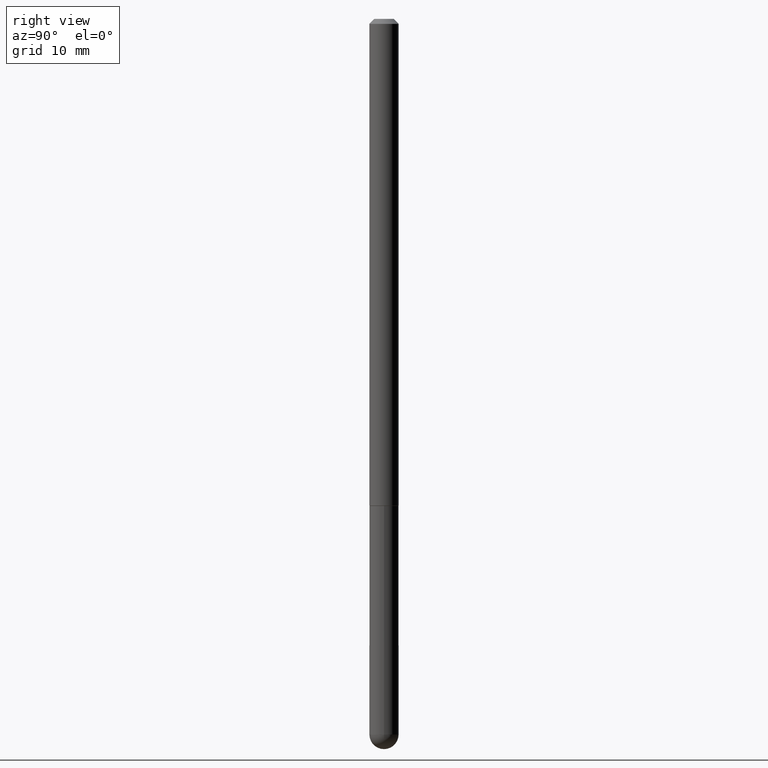
[diagram: clean part render]
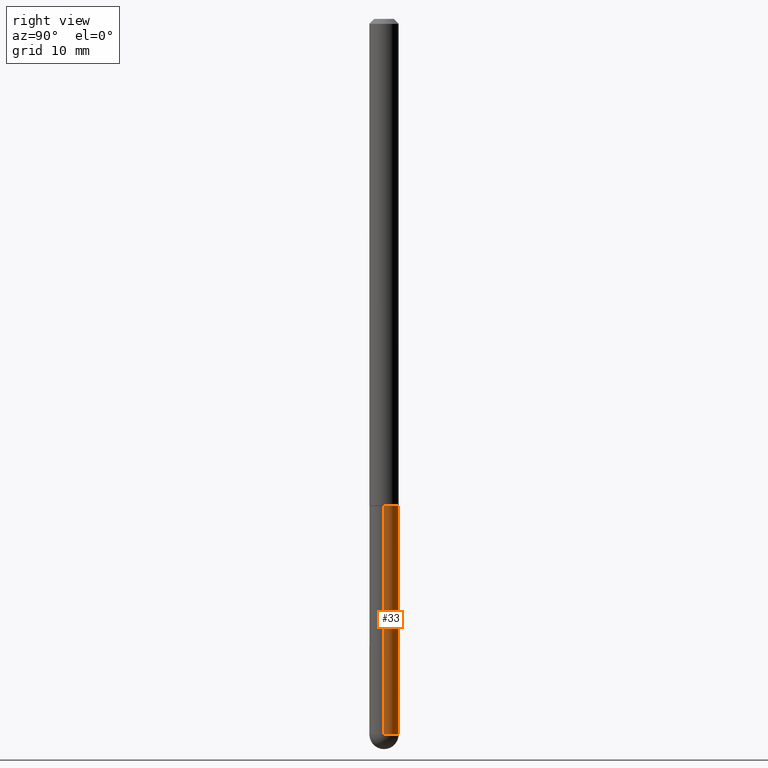
[diagram: same view with one face highlighted and labeled with its STEP entity id]
A machine part, right view. The second image highlights one B-rep face of the part: STEP entity #33.
In plain terms, the highlighted cylindrical surface (edge-blend (fillet) strip) has radius 1.4999 mm, axis along (-0, 0, 1).
Its self-contained STEP definition (entity closure, byte-faithful):
#3 = EDGE_LOOP ( 'NONE', ( #55, #138, #239, #338, #103 ) ) ;
#6 = LINE ( 'NONE', #59, #128 ) ;
#8 = VERTEX_POINT ( 'NONE', #226 ) ;
#27 = VERTEX_POINT ( 'NONE', #168 ) ;
#30 = DIRECTION ( 'NONE',  ( -2.445468806185136597E-29, 3.491481338843145583E-15, 1.000000000000000000 ) ) ;
#33 = ADVANCED_FACE ( 'NONE', ( #201 ), #275, .T. ) ;
#37 = DIRECTION ( 'NONE',  ( -2.445468806185136877E-29, 3.491481338843145188E-15, 1.000000000000000000 ) ) ;
#39 = EDGE_CURVE ( 'NONE', #52, #8, #6, .T. ) ;
#42 = CARTESIAN_POINT ( 'NONE',  ( 0.05905000000000001914, -8.900571516012416899E-15, -2.893749999999999822 ) ) ;
#52 = VERTEX_POINT ( 'NONE', #42 ) ;
#54 = CIRCLE ( 'NONE', #94, 0.05905000000000001914 ) ;
#55 = ORIENTED_EDGE ( 'NONE', *, *, #378, .T. ) ;
#59 = CARTESIAN_POINT ( 'NONE',  ( 0.05905000000000001914, -4.123439461173741806E-16, 2.879382386107500921E-30 ) ) ;
#92 = DIRECTION ( 'NONE',  ( 1.000000000000000000, -6.982962677686270655E-15, 0.000000000000000000 ) ) ;
#94 = AXIS2_PLACEMENT_3D ( 'NONE', #188, #30, #157 ) ;
#103 = ORIENTED_EDGE ( 'NONE', *, *, #194, .T. ) ;
#111 = CARTESIAN_POINT ( 'NONE',  ( 7.076575357898237682E-29, -1.010347412427735067E-14, -2.893749999999999822 ) ) ;
#128 = VECTOR ( 'NONE', #37, 39.37007874015748143 ) ;
#134 = AXIS2_PLACEMENT_3D ( 'NONE', #111, #331, #335 ) ;
#138 = ORIENTED_EDGE ( 'NONE', *, *, #282, .T. ) ;
#157 = DIRECTION ( 'NONE',  ( 1.000000000000000000, -6.982962677686270655E-15, 0.000000000000000000 ) ) ;
#159 = CARTESIAN_POINT ( 'NONE',  ( 4.123439461174440441E-16, 0.05904999999998979815, -2.893749999999999822 ) ) ;
#168 = CARTESIAN_POINT ( 'NONE',  ( -0.05905000000000001914, -8.068652084428701697E-15, -1.968499999999999694 ) ) ;
#171 = VECTOR ( 'NONE', #284, 39.37007874015748143 ) ;
#184 = CIRCLE ( 'NONE', #288, 0.05905000000000001914 ) ;
#188 = CARTESIAN_POINT ( 'NONE',  ( 4.813905344975440714E-29, -6.872981015512730918E-15, -1.968499999999999694 ) ) ;
#194 = EDGE_CURVE ( 'NONE', #52, #260, #311, .T. ) ;
#201 = FACE_OUTER_BOUND ( 'NONE', #3, .T. ) ;
#226 = CARTESIAN_POINT ( 'NONE',  ( 0.05905000000000001914, -7.285324961630105839E-15, -1.968499999999999694 ) ) ;
#239 = ORIENTED_EDGE ( 'NONE', *, *, #369, .F. ) ;
#245 = CARTESIAN_POINT ( 'NONE',  ( 0.000000000000000000, 0.000000000000000000, 0.000000000000000000 ) ) ;
#247 = CARTESIAN_POINT ( 'NONE',  ( 7.076575357898237682E-29, -1.010347412427735067E-14, -2.893749999999999822 ) ) ;
#251 = CARTESIAN_POINT ( 'NONE',  ( -0.05905000000000001914, -8.068652084428701697E-15, -2.893749999999999822 ) ) ;
#258 = VERTEX_POINT ( 'NONE', #251 ) ;
#260 = VERTEX_POINT ( 'NONE', #159 ) ;
#275 = CYLINDRICAL_SURFACE ( 'NONE', #363, 0.05905000000000001914 ) ;
#282 = EDGE_CURVE ( 'NONE', #258, #27, #321, .T. ) ;
#284 = DIRECTION ( 'NONE',  ( -2.445468806185136877E-29, 3.491481338843145188E-15, 1.000000000000000000 ) ) ;
#288 = AXIS2_PLACEMENT_3D ( 'NONE', #247, #375, #92 ) ;
#311 = CIRCLE ( 'NONE', #134, 0.05905000000000001914 ) ;
#320 = DIRECTION ( 'NONE',  ( 1.000000000000000000, -6.982962677686266711E-15, 4.876176775795935793E-29 ) ) ;
#321 = LINE ( 'NONE', #349, #171 ) ;
#331 = DIRECTION ( 'NONE',  ( -2.445468806185136597E-29, 3.491481338843145583E-15, 1.000000000000000000 ) ) ;
#335 = DIRECTION ( 'NONE',  ( 1.000000000000000000, -6.982962677686270655E-15, 0.000000000000000000 ) ) ;
#338 = ORIENTED_EDGE ( 'NONE', *, *, #39, .F. ) ;
#349 = CARTESIAN_POINT ( 'NONE',  ( -0.05905000000000001914, 4.195754854663392958E-16, -2.904631170795522943E-30 ) ) ;
#363 = AXIS2_PLACEMENT_3D ( 'NONE', #245, #384, #320 ) ;
#369 = EDGE_CURVE ( 'NONE', #8, #27, #54, .T. ) ;
#375 = DIRECTION ( 'NONE',  ( -2.445468806185136597E-29, 3.491481338843145583E-15, 1.000000000000000000 ) ) ;
#378 = EDGE_CURVE ( 'NONE', #260, #258, #184, .T. ) ;
#384 = DIRECTION ( 'NONE',  ( -2.445468806185136597E-29, 3.491481338843145583E-15, 1.000000000000000000 ) ) ;